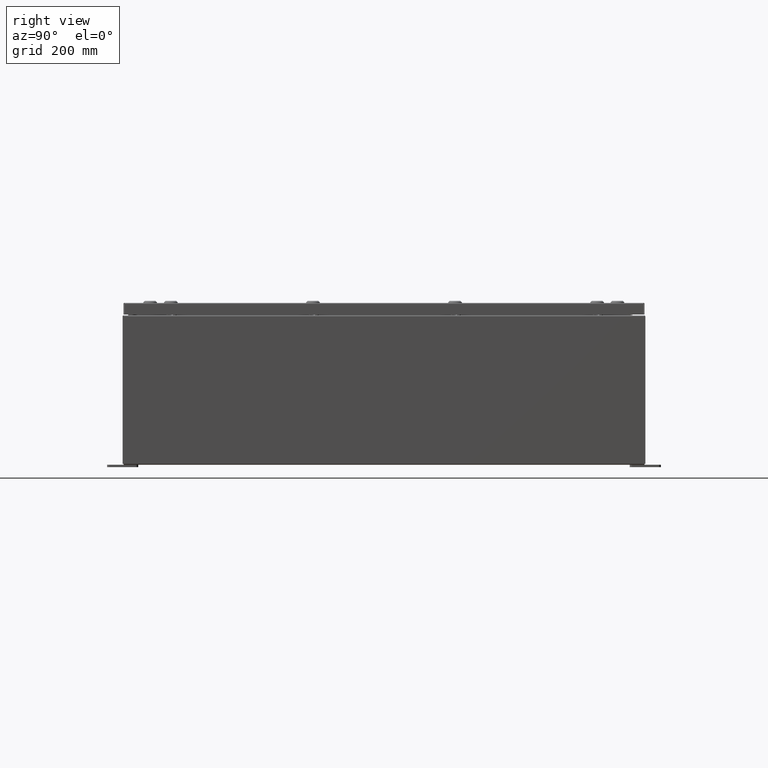
[diagram: clean part render]
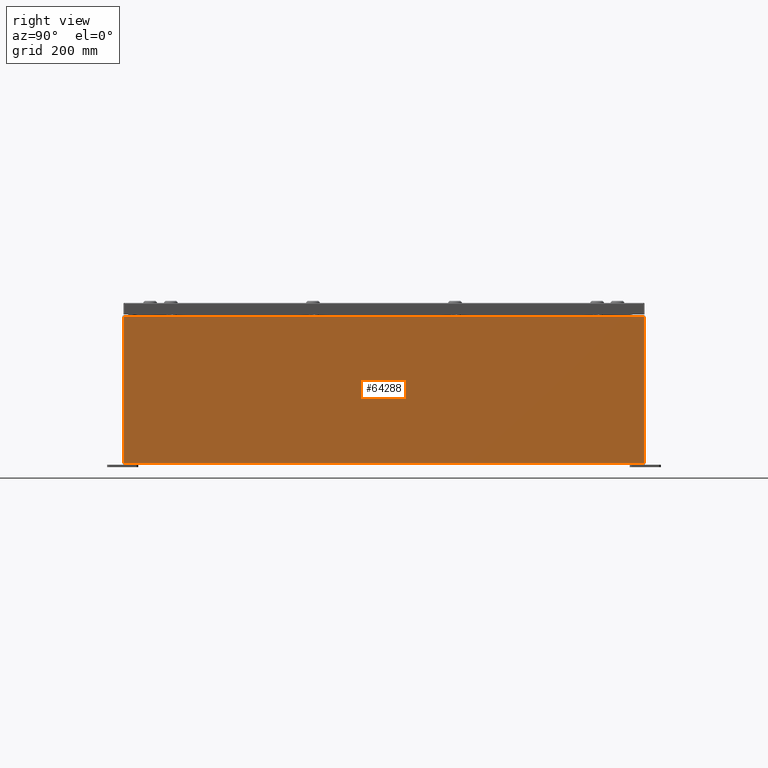
[diagram: same view with one face highlighted and labeled with its STEP entity id]
A machine part, right view. The second image highlights one B-rep face of the part: STEP entity #64288.
In plain terms, the highlighted planar face has unit normal (-1, 0, 0).
Its self-contained STEP definition (entity closure, byte-faithful):
#2072 = VECTOR ( 'NONE', #64354, 39.37007874015748100 ) ;
#3206 = VERTEX_POINT ( 'NONE', #32385 ) ;
#4362 = FACE_OUTER_BOUND ( 'NONE', #65184, .T. ) ;
#7089 = DIRECTION ( 'NONE',  ( -1.000000000000000000, 0.0000000000000000000, 3.482016343714355100E-015 ) ) ;
#9553 = ORIENTED_EDGE ( 'NONE', *, *, #41361, .T. ) ;
#10801 = DIRECTION ( 'NONE',  ( -3.482016343714355500E-015, 0.0000000000000000000, -1.000000000000000000 ) ) ;
#11492 = CARTESIAN_POINT ( 'NONE',  ( 18.00000000000000400, 20.92529999999998900, -6.293710784286997500E-014 ) ) ;
#12386 = CARTESIAN_POINT ( 'NONE',  ( 18.00000000000000400, 0.0000000000000000000, -6.293710784286997500E-014 ) ) ;
#15972 = LINE ( 'NONE', #24411, #42461 ) ;
#16161 = LINE ( 'NONE', #16616, #2072 ) ;
#16616 = CARTESIAN_POINT ( 'NONE',  ( 18.00000000000004300, 20.92529999999997900, 11.83760000000000000 ) ) ;
#16669 = LINE ( 'NONE', #58020, #43161 ) ;
#16797 = DIRECTION ( 'NONE',  ( 3.482016343714355500E-015, 0.0000000000000000000, 1.000000000000000000 ) ) ;
#22588 = CARTESIAN_POINT ( 'NONE',  ( 18.00000000000000400, 20.92529999999998600, 0.01299999999999984700 ) ) ;
#22626 = ORIENTED_EDGE ( 'NONE', *, *, #43463, .T. ) ;
#23098 = VERTEX_POINT ( 'NONE', #28907 ) ;
#24411 = CARTESIAN_POINT ( 'NONE',  ( 18.00000000000000400, -20.92529999999999600, 0.01299999999999984700 ) ) ;
#26214 = ORIENTED_EDGE ( 'NONE', *, *, #62426, .F. ) ;
#28907 = CARTESIAN_POINT ( 'NONE',  ( 18.00000000000000400, -20.92529999999999600, 0.01299999999999984700 ) ) ;
#30895 = AXIS2_PLACEMENT_3D ( 'NONE', #12386, #7089, #60094 ) ;
#31714 = EDGE_CURVE ( 'NONE', #62131, #3206, #48274, .T. ) ;
#31744 = VERTEX_POINT ( 'NONE', #63834 ) ;
#32385 = CARTESIAN_POINT ( 'NONE',  ( 18.00000000000004300, 20.92529999999997500, 11.83760000000000000 ) ) ;
#39020 = ORIENTED_EDGE ( 'NONE', *, *, #31714, .T. ) ;
#41361 = EDGE_CURVE ( 'NONE', #3206, #31744, #16161, .T. ) ;
#42461 = VECTOR ( 'NONE', #61673, 39.37007874015748100 ) ;
#43161 = VECTOR ( 'NONE', #10801, 39.37007874015748100 ) ;
#43463 = EDGE_CURVE ( 'NONE', #31744, #23098, #16669, .T. ) ;
#48274 = LINE ( 'NONE', #11492, #60720 ) ;
#54739 = PLANE ( 'NONE',  #30895 ) ;
#58020 = CARTESIAN_POINT ( 'NONE',  ( 18.00000000000000400, -20.92529999999999600, -6.293710784286997500E-014 ) ) ;
#60094 = DIRECTION ( 'NONE',  ( 3.482016343714355100E-015, 0.0000000000000000000, 1.000000000000000000 ) ) ;
#60720 = VECTOR ( 'NONE', #16797, 39.37007874015748100 ) ;
#61673 = DIRECTION ( 'NONE',  ( -0.0000000000000000000, -1.000000000000000000, -0.0000000000000000000 ) ) ;
#62131 = VERTEX_POINT ( 'NONE', #22588 ) ;
#62426 = EDGE_CURVE ( 'NONE', #62131, #23098, #15972, .T. ) ;
#63834 = CARTESIAN_POINT ( 'NONE',  ( 18.00000000000004300, -20.92529999999999600, 11.83760000000000000 ) ) ;
#64288 = ADVANCED_FACE ( 'NONE', ( #4362 ), #54739, .F. ) ;
#64354 = DIRECTION ( 'NONE',  ( -0.0000000000000000000, -1.000000000000000000, -0.0000000000000000000 ) ) ;
#65184 = EDGE_LOOP ( 'NONE', ( #9553, #22626, #26214, #39020 ) ) ;